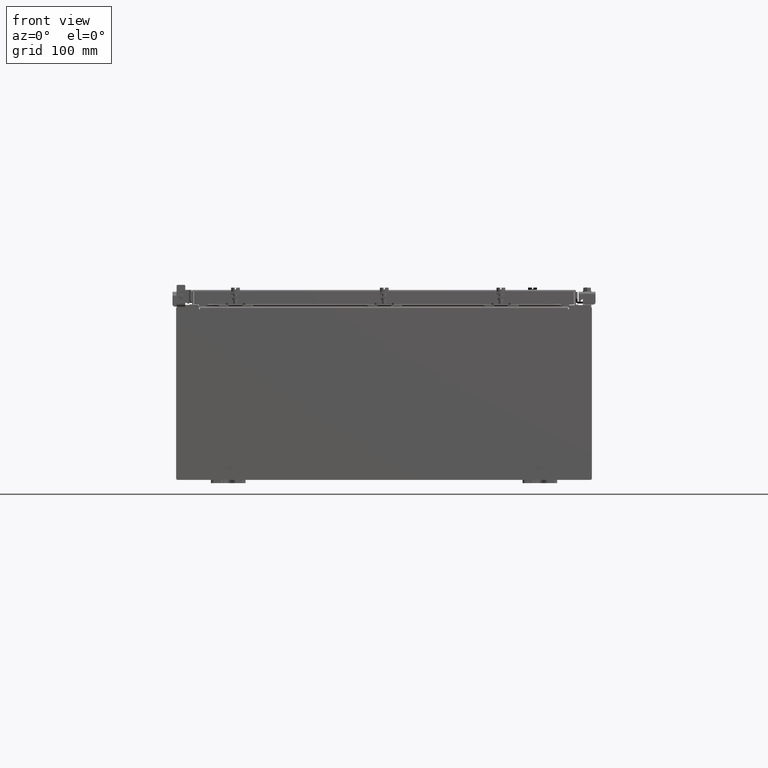
[diagram: clean part render]
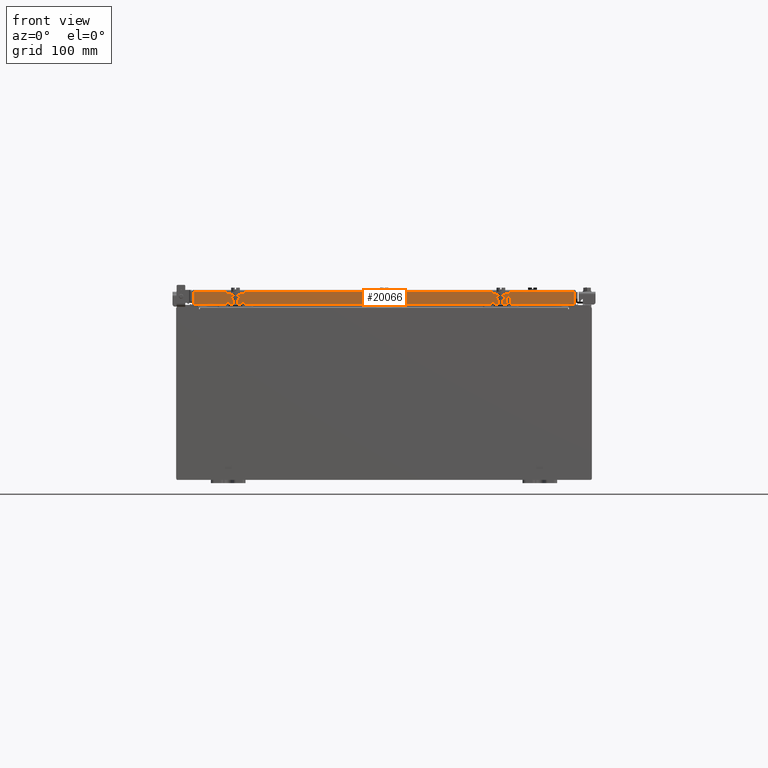
[diagram: same view with one face highlighted and labeled with its STEP entity id]
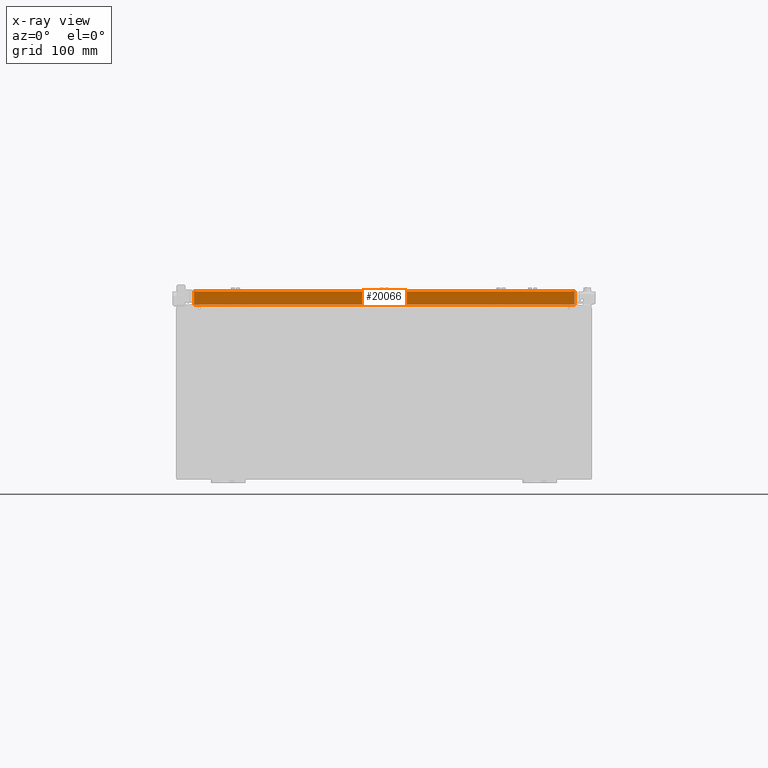
[diagram: x-ray of the same camera — body ghosted, the highlighted face saturated]
A machine part, front view. The second image highlights one B-rep face of the part: STEP entity #20066.
The next image is the same camera in x-ray: the body ghosted, the highlighted face saturated — about 0% of this face is hidden behind the body in this view.
In plain terms, the highlighted planar face has unit normal (0, 1, -0).
Its self-contained STEP definition (entity closure, byte-faithful):
#380 = DIRECTION ( 'NONE',  ( 0.0000000000000000000, -2.818880942772360500E-015, -1.000000000000000000 ) ) ;
#591 = DIRECTION ( 'NONE',  ( 1.000000000000000000, -9.864047639155999200E-017, -9.196021172131615100E-046 ) ) ;
#770 = EDGE_CURVE ( 'NONE', #3250, #5913, #12206, .T. ) ;
#1282 = EDGE_CURVE ( 'NONE', #5913, #20470, #17490, .T. ) ;
#1726 = ORIENTED_EDGE ( 'NONE', *, *, #1282, .F. ) ;
#2693 = VECTOR ( 'NONE', #591, 39.37007874015748100 ) ;
#3125 = DIRECTION ( 'NONE',  ( 9.864047639155998000E-017, 1.000000000000000000, -2.818880942772360500E-015 ) ) ;
#3250 = VERTEX_POINT ( 'NONE', #10158 ) ;
#3295 = VECTOR ( 'NONE', #22684, 39.37007874015748100 ) ;
#3707 = ORIENTED_EDGE ( 'NONE', *, *, #19786, .F. ) ;
#3849 = CARTESIAN_POINT ( 'NONE',  ( 11.07799999999999900, -14.09400000000000100, -0.08770000000000224800 ) ) ;
#3950 = VERTEX_POINT ( 'NONE', #15625 ) ;
#4424 = LINE ( 'NONE', #17347, #3295 ) ;
#4819 = DIRECTION ( 'NONE',  ( -1.000000000000000000, 0.0000000000000000000, 0.0000000000000000000 ) ) ;
#5599 = ORIENTED_EDGE ( 'NONE', *, *, #770, .F. ) ;
#5913 = VERTEX_POINT ( 'NONE', #12632 ) ;
#6000 = EDGE_CURVE ( 'NONE', #3250, #10332, #20479, .T. ) ;
#6749 = VECTOR ( 'NONE', #380, 39.37007874015748100 ) ;
#7518 = ORIENTED_EDGE ( 'NONE', *, *, #20026, .F. ) ;
#7705 = CARTESIAN_POINT ( 'NONE',  ( 10.98915786437626900, -14.09400000000000100, -0.07469999999999978000 ) ) ;
#7771 = VECTOR ( 'NONE', #11134, 39.37007874015748100 ) ;
#8062 = AXIS2_PLACEMENT_3D ( 'NONE', #13839, #3125, #15615 ) ;
#8306 = CARTESIAN_POINT ( 'NONE',  ( 10.23915786437626900, -14.09399999999999900, -0.8500000000000012000 ) ) ;
#8907 = VERTEX_POINT ( 'NONE', #18155 ) ;
#10158 = CARTESIAN_POINT ( 'NONE',  ( -10.98915786437626700, -14.09399999999999900, -0.08770000000000224800 ) ) ;
#10332 = VERTEX_POINT ( 'NONE', #15532 ) ;
#10813 = EDGE_CURVE ( 'NONE', #8907, #3950, #11571, .T. ) ;
#11071 = CARTESIAN_POINT ( 'NONE',  ( -10.98915786437626900, -14.09399999999999900, 3.999012166344522900E-014 ) ) ;
#11134 = DIRECTION ( 'NONE',  ( -1.000000000000000000, 9.864047639156033700E-017, 1.233005954894504400E-016 ) ) ;
#11571 = LINE ( 'NONE', #8306, #20535 ) ;
#11985 = LINE ( 'NONE', #16432, #7771 ) ;
#12206 = LINE ( 'NONE', #3849, #2693 ) ;
#12254 = FACE_OUTER_BOUND ( 'NONE', #12514, .T. ) ;
#12514 = EDGE_LOOP ( 'NONE', ( #5599, #15357, #7518, #17801, #3707, #1726 ) ) ;
#12632 = CARTESIAN_POINT ( 'NONE',  ( 10.98915786437624400, -14.09400000000000100, -0.08770000000000224800 ) ) ;
#13839 = CARTESIAN_POINT ( 'NONE',  ( -1.390238874262646300E-015, -14.09399999999999900, 3.999012166344522900E-014 ) ) ;
#15357 = ORIENTED_EDGE ( 'NONE', *, *, #6000, .T. ) ;
#15532 = CARTESIAN_POINT ( 'NONE',  ( -10.98915786437626900, -14.09400000000000100, -0.8499999999999969800 ) ) ;
#15615 = DIRECTION ( 'NONE',  ( 0.0000000000000000000, 2.818880942772360500E-015, 1.000000000000000000 ) ) ;
#15625 = CARTESIAN_POINT ( 'NONE',  ( -10.23915786437626900, -14.09399999999999900, -0.8500000000000012000 ) ) ;
#16432 = CARTESIAN_POINT ( 'NONE',  ( 11.07799999999999800, -14.09400000000000300, -0.8499999999999996400 ) ) ;
#16911 = VECTOR ( 'NONE', #20248, 39.37007874015748100 ) ;
#17347 = CARTESIAN_POINT ( 'NONE',  ( 11.07799999999999800, -14.09400000000000300, -0.8499999999999996400 ) ) ;
#17490 = LINE ( 'NONE', #7705, #16911 ) ;
#17801 = ORIENTED_EDGE ( 'NONE', *, *, #10813, .F. ) ;
#18155 = CARTESIAN_POINT ( 'NONE',  ( 10.23915786437626700, -14.09399999999999900, -0.8500000000000012000 ) ) ;
#18684 = CARTESIAN_POINT ( 'NONE',  ( 10.98915786437626900, -14.09400000000000300, -0.8499999999999996400 ) ) ;
#19786 = EDGE_CURVE ( 'NONE', #20470, #8907, #11985, .T. ) ;
#20026 = EDGE_CURVE ( 'NONE', #3950, #10332, #4424, .T. ) ;
#20066 = ADVANCED_FACE ( 'NONE', ( #12254 ), #20964, .F. ) ;
#20248 = DIRECTION ( 'NONE',  ( 0.0000000000000000000, -2.818880942772360500E-015, -1.000000000000000000 ) ) ;
#20470 = VERTEX_POINT ( 'NONE', #18684 ) ;
#20479 = LINE ( 'NONE', #11071, #6749 ) ;
#20535 = VECTOR ( 'NONE', #4819, 39.37007874015748100 ) ;
#20964 = PLANE ( 'NONE',  #8062 ) ;
#22684 = DIRECTION ( 'NONE',  ( -1.000000000000000000, 9.864047639156033700E-017, 1.233005954894504400E-016 ) ) ;